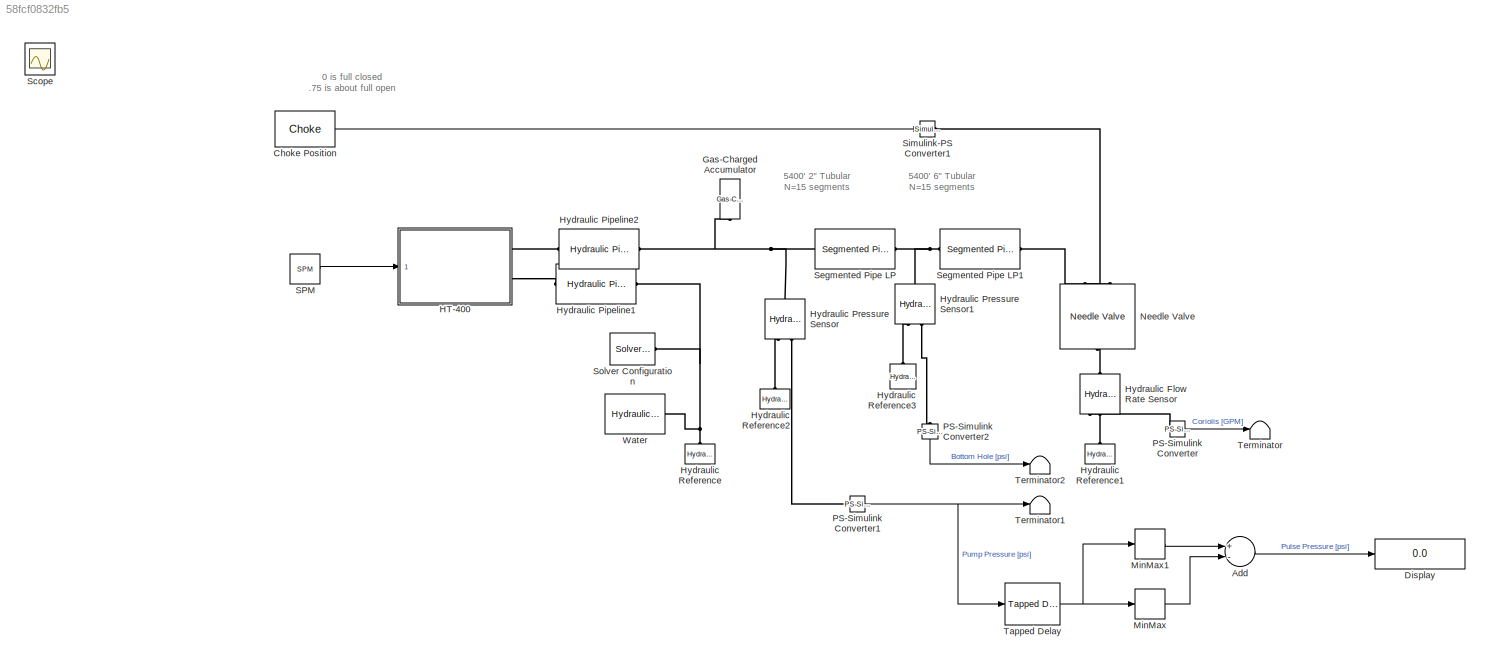
MODEL slx_58fcf0832fb5
KIND model
CONFIG AbsTol = auto
CONFIG EnableMultiTasking = off
CONFIG FixedStep = auto
CONFIG MaxStep = auto
CONFIG MinStep = auto
CONFIG PreLoadFcn = init_press=900;\ntrapped_air=0.0007;\nSPM=30;\nChoke=0.25;
CONFIG RelTol = 1e-3
CONFIG SampleTimeConstraint = Unconstrained
CONFIG Solver = ode23t
CONFIG SolverName = ode23t
CONFIG StartTime = 0.0
CONFIG StopTime = 40
BLOCK [Sum] Add
  InputSameDT = off
  Inputs = +-
  OutDataTypeStr = Inherit: Inherit via internal rule
  Ports = [2, 1]
  SaturateOnIntegerOverflow = off
BLOCK [Constant] Choke Position
  Value = Choke
BLOCK [Display] Display
  Decimation = 1
  Ports = [1]
BLOCK [Reference] Gas-Charged Accumulator  REF=sh_lib/Accumulators/Gas-Charged
Accumulator
  Ports = [0, 0, 0, 0, 0, 0, 1]
  SourceBlock = sh_lib/Accumulators/Gas-Charged\nAccumulator
  SourceProductBaseCode = SH
  SourceProductName = Simscape Fluids
  SourceType = Gas-Charged\nAccumulator
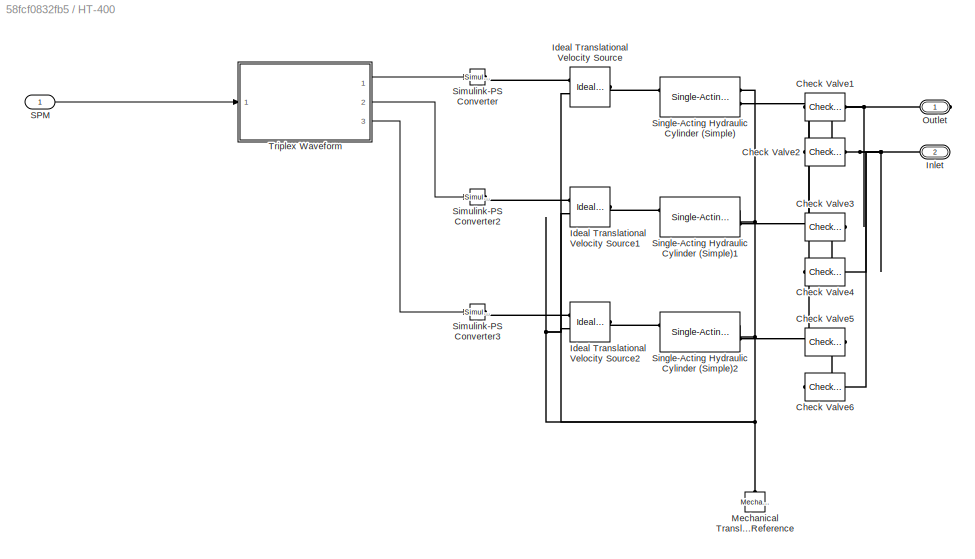
BLOCK [SubSystem] HT-400
  Ports = [1, 0, 0, 0, 0, 0, 2]
  RequestExecContextInheritance = off
BLOCK [Reference] HT-400/Check Valve1  REF=sh_lib/Valves/Directional Valves/Check Valve
  Ports = [0, 0, 0, 0, 0, 1, 1]
  SourceBlock = sh_lib/Valves/Directional Valves/Check Valve
  SourceProductBaseCode = SH
  SourceProductName = Simscape Fluids
  SourceType = Check Valve
BLOCK [Reference] HT-400/Check Valve2  REF=sh_lib/Valves/Directional Valves/Check Valve
  Ports = [0, 0, 0, 0, 0, 1, 1]
  SourceBlock = sh_lib/Valves/Directional Valves/Check Valve
  SourceProductBaseCode = SH
  SourceProductName = Simscape Fluids
  SourceType = Check Valve
BLOCK [Reference] HT-400/Check Valve3  REF=sh_lib/Valves/Directional Valves/Check Valve
  Ports = [0, 0, 0, 0, 0, 1, 1]
  SourceBlock = sh_lib/Valves/Directional Valves/Check Valve
  SourceProductBaseCode = SH
  SourceProductName = Simscape Fluids
  SourceType = Check Valve
BLOCK [Reference] HT-400/Check Valve4  REF=sh_lib/Valves/Directional Valves/Check Valve
  Ports = [0, 0, 0, 0, 0, 1, 1]
  SourceBlock = sh_lib/Valves/Directional Valves/Check Valve
  SourceProductBaseCode = SH
  SourceProductName = Simscape Fluids
  SourceType = Check Valve
BLOCK [Reference] HT-400/Check Valve5  REF=sh_lib/Valves/Directional Valves/Check Valve
  Ports = [0, 0, 0, 0, 0, 1, 1]
  SourceBlock = sh_lib/Valves/Directional Valves/Check Valve
  SourceProductBaseCode = SH
  SourceProductName = Simscape Fluids
  SourceType = Check Valve
BLOCK [Reference] HT-400/Check Valve6  REF=sh_lib/Valves/Directional Valves/Check Valve
  Ports = [0, 0, 0, 0, 0, 1, 1]
  SourceBlock = sh_lib/Valves/Directional Valves/Check Valve
  SourceProductBaseCode = SH
  SourceProductName = Simscape Fluids
  SourceType = Check Valve
BLOCK [Reference] HT-400/Ideal Translational Velocity Source  REF=fl_lib/Mechanical/Mechanical Sources/Ideal Translational
Velocity Source
  Ports = [0, 0, 0, 0, 0, 1, 2]
  SourceBlock = fl_lib/Mechanical/Mechanical Sources/Ideal Translational\nVelocity Source
  SourceProductBaseCode = SS
  SourceProductName = Simscape
  SourceType = Ideal Translational\nVelocity Source
BLOCK [Reference] HT-400/Ideal Translational Velocity Source1  REF=fl_lib/Mechanical/Mechanical Sources/Ideal Translational
Velocity Source
  Ports = [0, 0, 0, 0, 0, 1, 2]
  SourceBlock = fl_lib/Mechanical/Mechanical Sources/Ideal Translational\nVelocity Source
  SourceProductBaseCode = SS
  SourceProductName = Simscape
  SourceType = Ideal Translational\nVelocity Source
BLOCK [Reference] HT-400/Ideal Translational Velocity Source2  REF=fl_lib/Mechanical/Mechanical Sources/Ideal Translational
Velocity Source
  Ports = [0, 0, 0, 0, 0, 1, 2]
  SourceBlock = fl_lib/Mechanical/Mechanical Sources/Ideal Translational\nVelocity Source
  SourceProductBaseCode = SS
  SourceProductName = Simscape
  SourceType = Ideal Translational\nVelocity Source
BLOCK [PMIOPort] HT-400/Inlet
  Port = 2
  Side = Right
BLOCK [Reference] HT-400/Mechanical Translational Reference  REF=fl_lib/Mechanical/Translational
Elements/Mechanical
Translational
Reference
  Ports = [0, 0, 0, 0, 0, 1]
  SourceBlock = fl_lib/Mechanical/Translational\nElements/Mechanical\nTranslational\nReference
  SourceProductBaseCode = SS
  SourceProductName = Simscape
  SourceType = Mechanical\nTranslational\nReference
BLOCK [PMIOPort] HT-400/Outlet
  Side = Right
BLOCK [Inport] HT-400/SPM
  IconDisplay = Port number
BLOCK [Reference] HT-400/Simulink-PS Converter  REF=nesl_utility/Simulink-PS
Converter
  Ports = [1, 0, 0, 0, 0, 0, 1]
  SourceBlock = nesl_utility/Simulink-PS\nConverter
  SourceProductBaseCode = SS
  SourceProductName = Simscape
  SourceType = Simulink-PS\nConverter
BLOCK [Reference] HT-400/Simulink-PS Converter2  REF=nesl_utility/Simulink-PS
Converter
  Ports = [1, 0, 0, 0, 0, 0, 1]
  SourceBlock = nesl_utility/Simulink-PS\nConverter
  SourceProductBaseCode = SS
  SourceProductName = Simscape
  SourceType = Simulink-PS\nConverter
BLOCK [Reference] HT-400/Simulink-PS Converter3  REF=nesl_utility/Simulink-PS
Converter
  Ports = [1, 0, 0, 0, 0, 0, 1]
  SourceBlock = nesl_utility/Simulink-PS\nConverter
  SourceProductBaseCode = SS
  SourceProductName = Simscape
  SourceType = Simulink-PS\nConverter
BLOCK [Reference] HT-400/Single-Acting Hydraulic Cylinder (Simple)  REF=sh_lib/Hydraulic Cylinders/Single-Acting
Hydraulic Cylinder
(Simple)
  Ports = [0, 0, 0, 0, 0, 2, 2]
  SourceBlock = sh_lib/Hydraulic Cylinders/Single-Acting\nHydraulic Cylinder\n(Simple)
  SourceProductBaseCode = SH
  SourceProductName = Simscape Fluids
  SourceType = Single-Acting\nHydraulic Cylinder\n(Simple)
BLOCK [Reference] HT-400/Single-Acting Hydraulic Cylinder (Simple)1  REF=sh_lib/Hydraulic Cylinders/Single-Acting
Hydraulic Cylinder
(Simple)
  Ports = [0, 0, 0, 0, 0, 2, 2]
  SourceBlock = sh_lib/Hydraulic Cylinders/Single-Acting\nHydraulic Cylinder\n(Simple)
  SourceProductBaseCode = SH
  SourceProductName = Simscape Fluids
  SourceType = Single-Acting\nHydraulic Cylinder\n(Simple)
BLOCK [Reference] HT-400/Single-Acting Hydraulic Cylinder (Simple)2  REF=sh_lib/Hydraulic Cylinders/Single-Acting
Hydraulic Cylinder
(Simple)
  Ports = [0, 0, 0, 0, 0, 2, 2]
  SourceBlock = sh_lib/Hydraulic Cylinders/Single-Acting\nHydraulic Cylinder\n(Simple)
  SourceProductBaseCode = SH
  SourceProductName = Simscape Fluids
  SourceType = Single-Acting\nHydraulic Cylinder\n(Simple)
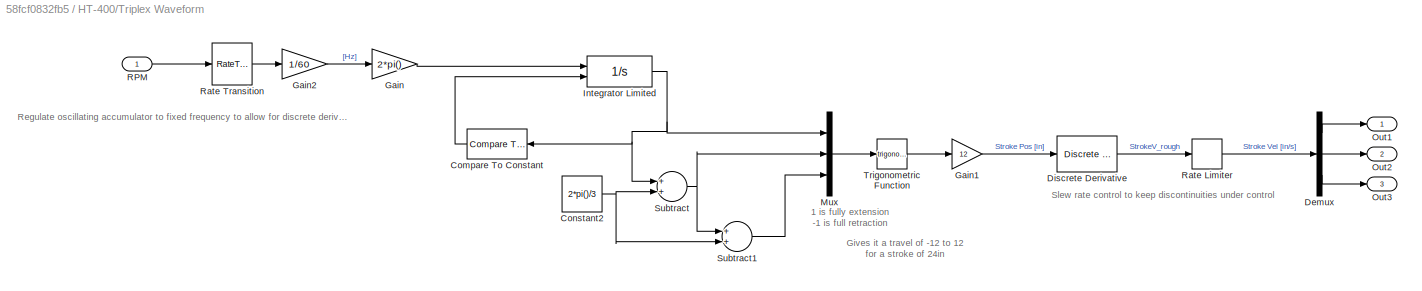
BLOCK [SubSystem] HT-400/Triplex Waveform
  Ports = [1, 3]
  RequestExecContextInheritance = off
BLOCK [Reference] HT-400/Triplex Waveform/Compare To Constant  REF=simulink/Logic and Bit
Operations/Compare
To Constant
  Ports = [1, 1]
  SourceBlock = simulink/Logic and Bit\nOperations/Compare\nTo Constant
  SourceProductBaseCode = SL
  SourceProductName = Simulink
  SourceType = Compare To Constant
BLOCK [Constant] HT-400/Triplex Waveform/Constant2
  Value = 2*pi()/3
BLOCK [Demux] HT-400/Triplex Waveform/Demux
  DisplayOption = bar
  Outputs = 3
  Ports = [1, 3]
BLOCK [Reference] HT-400/Triplex Waveform/Discrete Derivative  REF=simulink/Discrete/Discrete Derivative
  Ports = [1, 1]
  SourceBlock = simulink/Discrete/Discrete Derivative
  SourceProductBaseCode = SL
  SourceProductName = Simulink
  SourceType = Discrete Derivative
BLOCK [Gain] HT-400/Triplex Waveform/Gain
  Gain = 2*pi()
  OutDataTypeStr = Inherit: Inherit via internal rule
  ParamDataTypeStr = Inherit: Inherit via internal rule
  SaturateOnIntegerOverflow = off
BLOCK [Gain] HT-400/Triplex Waveform/Gain1
  Gain = 12
  OutDataTypeStr = Inherit: Inherit via internal rule
  ParamDataTypeStr = Inherit: Inherit via internal rule
  SaturateOnIntegerOverflow = off
BLOCK [Gain] HT-400/Triplex Waveform/Gain2
  Gain = 1/60
  OutDataTypeStr = Inherit: Inherit via internal rule
  ParamDataTypeStr = Inherit: Inherit via internal rule
  SaturateOnIntegerOverflow = off
BLOCK [Integrator] HT-400/Triplex Waveform/Integrator Limited
  ExternalReset = rising
  InitialCondition = 1E-6
  LimitOutput = on
  LowerSaturationLimit = 0
  Ports = [2, 1]
  UpperSaturationLimit = 2*pi()
BLOCK [Mux] HT-400/Triplex Waveform/Mux
  DisplayOption = bar
  Inputs = 3
  Ports = [3, 1]
BLOCK [Outport] HT-400/Triplex Waveform/Out1
  IconDisplay = Port number
  VectorParamsAs1DForOutWhenUnconnected = off
BLOCK [Outport] HT-400/Triplex Waveform/Out2
  IconDisplay = Port number
  Port = 2
  VectorParamsAs1DForOutWhenUnconnected = off
BLOCK [Outport] HT-400/Triplex Waveform/Out3
  IconDisplay = Port number
  Port = 3
  VectorParamsAs1DForOutWhenUnconnected = off
BLOCK [Inport] HT-400/Triplex Waveform/RPM
  IconDisplay = Port number
BLOCK [RateLimiter] HT-400/Triplex Waveform/Rate Limiter
  FallingSlewLimit = -100
  RisingSlewLimit = 100
  SampleTimeMode = inherited
BLOCK [RateTransition] HT-400/Triplex Waveform/Rate Transition
  OutPortSampleTime = .005
BLOCK [Sum] HT-400/Triplex Waveform/Subtract
  InputSameDT = off
  OutDataTypeStr = Inherit: Inherit via internal rule
  Ports = [2, 1]
  SaturateOnIntegerOverflow = off
BLOCK [Sum] HT-400/Triplex Waveform/Subtract1
  InputSameDT = off
  OutDataTypeStr = Inherit: Inherit via internal rule
  Ports = [2, 1]
  SaturateOnIntegerOverflow = off
BLOCK [Trigonometry] HT-400/Triplex Waveform/Trigonometric Function
  Ports = [1, 1]
BLOCK [Reference] Hydraulic Flow Rate Sensor  REF=fl_lib/Hydraulic/Hydraulic Sensors/Hydraulic Flow Rate
Sensor
  Ports = [0, 0, 0, 0, 0, 1, 3]
  SourceBlock = fl_lib/Hydraulic/Hydraulic Sensors/Hydraulic Flow Rate\nSensor
  SourceProductBaseCode = SS
  SourceProductName = Simscape
  SourceType = Hydraulic Flow Rate\nSensor
BLOCK [Reference] Hydraulic Pipeline1  REF=sh_lib/Pipelines/Hydraulic Pipeline
  Ports = [0, 0, 0, 0, 0, 1, 1]
  SourceBlock = sh_lib/Pipelines/Hydraulic Pipeline
  SourceProductBaseCode = SH
  SourceProductName = Simscape Fluids
  SourceType = Hydraulic Pipeline
BLOCK [Reference] Hydraulic Pipeline2  REF=sh_lib/Pipelines/Hydraulic Pipeline
  Ports = [0, 0, 0, 0, 0, 1, 1]
  SourceBlock = sh_lib/Pipelines/Hydraulic Pipeline
  SourceProductBaseCode = SH
  SourceProductName = Simscape Fluids
  SourceType = Hydraulic Pipeline
BLOCK [Reference] Hydraulic Pressure Sensor  REF=fl_lib/Hydraulic/Hydraulic Sensors/Hydraulic Pressure
Sensor
  Ports = [0, 0, 0, 0, 0, 1, 2]
  SourceBlock = fl_lib/Hydraulic/Hydraulic Sensors/Hydraulic Pressure\nSensor
  SourceProductBaseCode = SS
  SourceProductName = Simscape
  SourceType = Hydraulic Pressure\nSensor
BLOCK [Reference] Hydraulic Pressure Sensor1  REF=fl_lib/Hydraulic/Hydraulic Sensors/Hydraulic Pressure
Sensor
  Ports = [0, 0, 0, 0, 0, 1, 2]
  SourceBlock = fl_lib/Hydraulic/Hydraulic Sensors/Hydraulic Pressure\nSensor
  SourceProductBaseCode = SS
  SourceProductName = Simscape
  SourceType = Hydraulic Pressure\nSensor
BLOCK [Reference] Hydraulic Reference  REF=fl_lib/Hydraulic/Hydraulic Elements/Hydraulic Reference
  Ports = [0, 0, 0, 0, 0, 1]
  SourceBlock = fl_lib/Hydraulic/Hydraulic Elements/Hydraulic Reference
  SourceProductBaseCode = SS
  SourceProductName = Simscape
  SourceType = Hydraulic Reference
BLOCK [Reference] Hydraulic Reference1  REF=fl_lib/Hydraulic/Hydraulic Elements/Hydraulic Reference
  Ports = [0, 0, 0, 0, 0, 1]
  SourceBlock = fl_lib/Hydraulic/Hydraulic Elements/Hydraulic Reference
  SourceProductBaseCode = SS
  SourceProductName = Simscape
  SourceType = Hydraulic Reference
BLOCK [Reference] Hydraulic Reference2  REF=fl_lib/Hydraulic/Hydraulic Elements/Hydraulic Reference
  Ports = [0, 0, 0, 0, 0, 1]
  SourceBlock = fl_lib/Hydraulic/Hydraulic Elements/Hydraulic Reference
  SourceProductBaseCode = SS
  SourceProductName = Simscape
  SourceType = Hydraulic Reference
BLOCK [Reference] Hydraulic Reference3  REF=fl_lib/Hydraulic/Hydraulic Elements/Hydraulic Reference
  Ports = [0, 0, 0, 0, 0, 1]
  SourceBlock = fl_lib/Hydraulic/Hydraulic Elements/Hydraulic Reference
  SourceProductBaseCode = SS
  SourceProductName = Simscape
  SourceType = Hydraulic Reference
BLOCK [MinMax] MinMax
  InputSameDT = off
  Ports = [1, 1]
  SaturateOnIntegerOverflow = off
BLOCK [MinMax] MinMax1
  Function = max
  InputSameDT = off
  Ports = [1, 1]
  SaturateOnIntegerOverflow = off
BLOCK [Reference] Needle Valve  REF=sh_lib/Valves/Flow Control Valves/Needle Valve
  Ports = [0, 0, 0, 0, 0, 2, 1]
  SourceBlock = sh_lib/Valves/Flow Control Valves/Needle Valve
  SourceProductBaseCode = SH
  SourceProductName = Simscape Fluids
  SourceType = Needle Valve
BLOCK [Reference] PS-Simulink Converter  REF=nesl_utility/PS-Simulink
Converter
  Ports = [0, 1, 0, 0, 0, 1]
  SourceBlock = nesl_utility/PS-Simulink\nConverter
  SourceProductBaseCode = SS
  SourceProductName = Simscape
  SourceType = PS-Simulink\nConverter
BLOCK [Reference] PS-Simulink Converter1  REF=nesl_utility/PS-Simulink
Converter
  Ports = [0, 1, 0, 0, 0, 1]
  SourceBlock = nesl_utility/PS-Simulink\nConverter
  SourceProductBaseCode = SS
  SourceProductName = Simscape
  SourceType = PS-Simulink\nConverter
BLOCK [Reference] PS-Simulink Converter2  REF=nesl_utility/PS-Simulink
Converter
  Ports = [0, 1, 0, 0, 0, 1]
  SourceBlock = nesl_utility/PS-Simulink\nConverter
  SourceProductBaseCode = SS
  SourceProductName = Simscape
  SourceType = PS-Simulink\nConverter
BLOCK [Constant] SPM
  Value = SPM
BLOCK [Scope] Scope
  Floating = off
  IOType = viewer
  NumInputPorts = 1
  Ports = []
  ScopeSpecificationString = Simulink.scopes.TimeScopeBlockCfg('CurrentConfiguration', extmgr.ConfigurationSet(extmgr.Configuration('Core','General UI',true),extmgr.Configuration('Core','Source UI',true),extmgr.Configuration('Sources','WiredSimulink',true,'DataLoggingDecimation','10'),extmgr.Configuration('Visuals','Time Domain',true,'SerializedDisplays',{struct('MinYLimReal','-575.87104','MaxYLimReal','806.09075','YLabelReal...<+3638ch>
BLOCK [Reference] Segmented Pipe LP  REF=sh_lib/Low-Pressure Blocks/Segmented Pipe LP
  Ports = [0, 0, 0, 0, 0, 1, 1]
  SourceBlock = sh_lib/Low-Pressure Blocks/Segmented Pipe LP
  SourceProductBaseCode = SH
  SourceProductName = Simscape Fluids
  SourceType = Segmented Pipe LP
BLOCK [Reference] Segmented Pipe LP1  REF=sh_lib/Low-Pressure Blocks/Segmented Pipe LP
  Ports = [0, 0, 0, 0, 0, 1, 1]
  SourceBlock = sh_lib/Low-Pressure Blocks/Segmented Pipe LP
  SourceProductBaseCode = SH
  SourceProductName = Simscape Fluids
  SourceType = Segmented Pipe LP
BLOCK [Reference] Simulink-PS Converter1  REF=nesl_utility/Simulink-PS
Converter
  Ports = [1, 0, 0, 0, 0, 0, 1]
  SourceBlock = nesl_utility/Simulink-PS\nConverter
  SourceProductBaseCode = SS
  SourceProductName = Simscape
  SourceType = Simulink-PS\nConverter
BLOCK [Reference] Solver Configuration  REF=nesl_utility/Solver
Configuration
  Ports = [0, 0, 0, 0, 0, 0, 1]
  SourceBlock = nesl_utility/Solver\nConfiguration
  SourceProductBaseCode = SS
  SourceProductName = Simscape
  SourceType = Solver\nConfiguration
BLOCK [Reference] Tapped Delay  REF=simulink/Discrete/Tapped Delay
  Ports = [1, 1]
  SourceBlock = simulink/Discrete/Tapped Delay
  SourceProductBaseCode = SL
  SourceProductName = Simulink
  SourceType = Tapped Delay Line
BLOCK [Terminator] Terminator
BLOCK [Terminator] Terminator1
BLOCK [Terminator] Terminator2
BLOCK [Reference] Water  REF=sh_lib/Hydraulic Utilities/Hydraulic Fluid
  Ports = [0, 0, 0, 0, 0, 0, 1]
  SourceBlock = sh_lib/Hydraulic Utilities/Hydraulic Fluid
  SourceProductBaseCode = SH
  SourceProductName = Simscape Fluids
  SourceType = Hydraulic Fluid
ANNOTATION (root): 0 is full closed .75 is about full open
ANNOTATION (root): 5400' 2" Tubular N=15 segments
ANNOTATION (root): 5400' 6" Tubular N=15 segments
ANNOTATION HT-400/Triplex Waveform: 1 is fully extension -1 is full retraction
ANNOTATION HT-400/Triplex Waveform: Gives it a travel of -12 to 12 for a stroke of 24in
ANNOTATION HT-400/Triplex Waveform: Regulate oscillating accumulator to fixed frequency to allow for discrete derivative use.
ANNOTATION HT-400/Triplex Waveform: Slew rate control to keep discontinuities under control
LINE Add:1 -> Display:1
LINE Choke Position:1 -> Simulink-PS Converter1:1
LINE HT-400/SPM:1 -> HT-400/Triplex Waveform:1
LINE HT-400/Triplex Waveform/Compare To Constant:1 -> HT-400/Triplex Waveform/Integrator Limited:2
NET HT-400/Triplex Waveform/Constant2:1 -> HT-400/Triplex Waveform/Subtract1:2, HT-400/Triplex Waveform/Subtract:2
LINE HT-400/Triplex Waveform/Demux:1 -> HT-400/Triplex Waveform/Out1:1
LINE HT-400/Triplex Waveform/Demux:2 -> HT-400/Triplex Waveform/Out2:1
LINE HT-400/Triplex Waveform/Demux:3 -> HT-400/Triplex Waveform/Out3:1
LINE HT-400/Triplex Waveform/Discrete Derivative:1 -> HT-400/Triplex Waveform/Rate Limiter:1
LINE HT-400/Triplex Waveform/Gain1:1 -> HT-400/Triplex Waveform/Discrete Derivative:1
LINE HT-400/Triplex Waveform/Gain2:1 -> HT-400/Triplex Waveform/Gain:1
LINE HT-400/Triplex Waveform/Gain:1 -> HT-400/Triplex Waveform/Integrator Limited:1
NET HT-400/Triplex Waveform/Integrator Limited:1 -> HT-400/Triplex Waveform/Compare To Constant:1, HT-400/Triplex Waveform/Mux:1, HT-400/Triplex Waveform/Subtract:1
LINE HT-400/Triplex Waveform/Mux:1 -> HT-400/Triplex Waveform/Trigonometric Function:1
LINE HT-400/Triplex Waveform/RPM:1 -> HT-400/Triplex Waveform/Rate Transition:1
LINE HT-400/Triplex Waveform/Rate Limiter:1 -> HT-400/Triplex Waveform/Demux:1
LINE HT-400/Triplex Waveform/Rate Transition:1 -> HT-400/Triplex Waveform/Gain2:1
LINE HT-400/Triplex Waveform/Subtract1:1 -> HT-400/Triplex Waveform/Mux:3
NET HT-400/Triplex Waveform/Subtract:1 -> HT-400/Triplex Waveform/Mux:2, HT-400/Triplex Waveform/Subtract1:1
LINE HT-400/Triplex Waveform/Trigonometric Function:1 -> HT-400/Triplex Waveform/Gain1:1
LINE HT-400/Triplex Waveform:1 -> HT-400/Simulink-PS Converter:1
LINE HT-400/Triplex Waveform:2 -> HT-400/Simulink-PS Converter2:1
LINE HT-400/Triplex Waveform:3 -> HT-400/Simulink-PS Converter3:1
LINE MinMax1:1 -> Add:1
LINE MinMax:1 -> Add:2
NET PS-Simulink Converter1:1 -> Tapped Delay:1, Terminator1:1
LINE PS-Simulink Converter2:1 -> Terminator2:1
LINE PS-Simulink Converter:1 -> Terminator:1
LINE SPM:1 -> HT-400:1
NET Tapped Delay:1 -> MinMax1:1, MinMax:1
PNET net1: Gas-Charged Accumulator:RConn1 -- Hydraulic Pipeline2:RConn1 -- Hydraulic Pressure Sensor:LConn1 -- Segmented Pipe LP:LConn1
PNET net2: HT-400/Check Valve1:LConn1 -- HT-400/Check Valve2:RConn1 -- HT-400/Single-Acting Hydraulic Cylinder (Simple):LConn2
PNET net3: HT-400/Check Valve1:RConn1 -- HT-400/Check Valve3:RConn1 -- HT-400/Check Valve5:RConn1 -- HT-400/Outlet:RConn1
PNET net4: HT-400/Check Valve2:LConn1 -- HT-400/Check Valve4:LConn1 -- HT-400/Check Valve6:LConn1 -- HT-400/Inlet:RConn1
PNET net5: HT-400/Check Valve3:LConn1 -- HT-400/Check Valve4:RConn1 -- HT-400/Single-Acting Hydraulic Cylinder (Simple)1:LConn2
PNET net6: HT-400/Check Valve5:LConn1 -- HT-400/Check Valve6:RConn1 -- HT-400/Single-Acting Hydraulic Cylinder (Simple)2:LConn2
PLINE HT-400/Ideal Translational Velocity Source1:LConn1 -- HT-400/Single-Acting Hydraulic Cylinder (Simple)1:RConn1
PLINE HT-400/Ideal Translational Velocity Source1:RConn1 -- HT-400/Simulink-PS Converter2:RConn1
PNET net7: HT-400/Ideal Translational Velocity Source1:RConn2 -- HT-400/Ideal Translational Velocity Source2:RConn2 -- HT-400/Ideal Translational Velocity Source:RConn2 -- HT-400/Mechanical Translational Reference:LConn1 -- HT-400/Single-Acting Hydraulic Cylinder (Simple)1:LConn1 -- HT-400/Single-Acting Hydraulic Cylinder (Simple)2:LConn1 -- HT-400/Single-Acting Hydraulic Cylinder (Simple):LConn1
PLINE HT-400/Ideal Translational Velocity Source2:LConn1 -- HT-400/Single-Acting Hydraulic Cylinder (Simple)2:RConn1
PLINE HT-400/Ideal Translational Velocity Source2:RConn1 -- HT-400/Simulink-PS Converter3:RConn1
PLINE HT-400/Ideal Translational Velocity Source:LConn1 -- HT-400/Single-Acting Hydraulic Cylinder (Simple):RConn1
PLINE HT-400/Ideal Translational Velocity Source:RConn1 -- HT-400/Simulink-PS Converter:RConn1
PLINE HT-400:RConn1 -- Hydraulic Pipeline2:LConn1
PLINE HT-400:RConn2 -- Hydraulic Pipeline1:LConn1
PLINE Hydraulic Flow Rate Sensor:LConn1 -- Needle Valve:RConn1
PLINE Hydraulic Flow Rate Sensor:RConn1 -- PS-Simulink Converter:LConn1
PLINE Hydraulic Flow Rate Sensor:RConn2 -- Hydraulic Reference1:LConn1
PNET net8: Hydraulic Pipeline1:RConn1 -- Hydraulic Reference:LConn1 -- Solver Configuration:RConn1 -- Water:RConn1
PNET net9: Hydraulic Pressure Sensor1:LConn1 -- Segmented Pipe LP1:LConn1 -- Segmented Pipe LP:RConn1
PLINE Hydraulic Pressure Sensor1:RConn1 -- Hydraulic Reference3:LConn1
PLINE Hydraulic Pressure Sensor1:RConn2 -- PS-Simulink Converter2:LConn1
PLINE Hydraulic Pressure Sensor:RConn1 -- Hydraulic Reference2:LConn1
PLINE Hydraulic Pressure Sensor:RConn2 -- PS-Simulink Converter1:LConn1
PLINE Needle Valve:LConn1 -- Simulink-PS Converter1:RConn1
PLINE Needle Valve:LConn2 -- Segmented Pipe LP1:RConn1
note: NET lines group one-source signal fan-out (src -> all destinations, sorted); 1:1 wires keep LINE; PNET lines group multi-terminal physical nets as a canonical sorted terminal list (undirected conserving connections); 2-terminal nets keep the pairwise PLINE form
